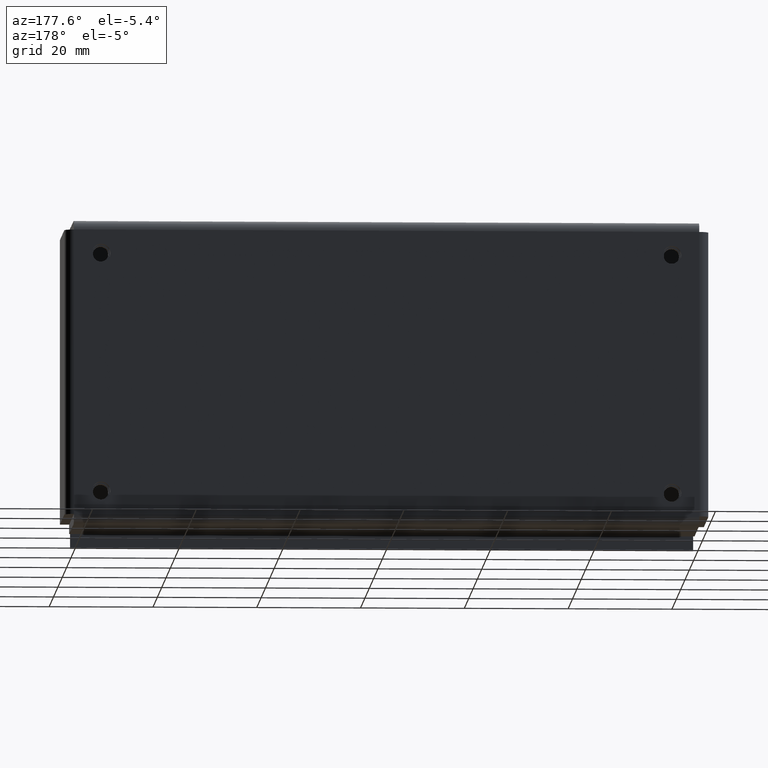
[diagram: clean part render]
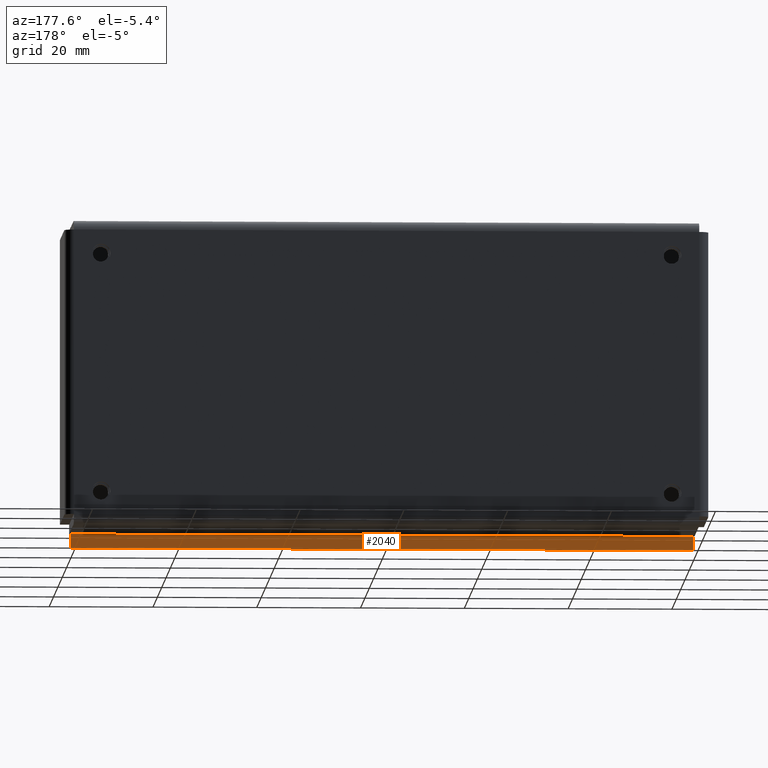
[diagram: same view with one face highlighted and labeled with its STEP entity id]
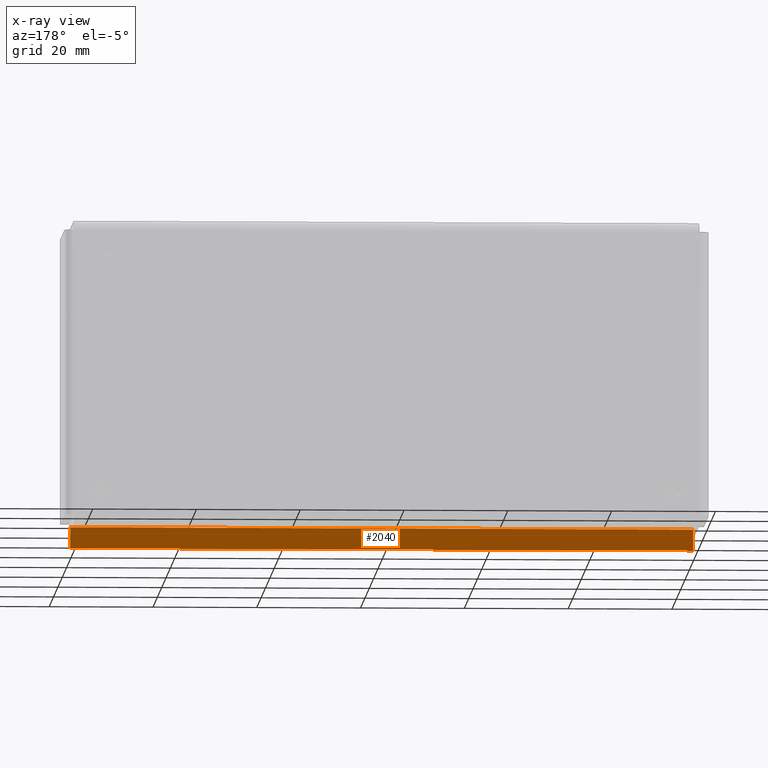
[diagram: x-ray of the same camera — body ghosted, the highlighted face saturated]
A machine part, auxiliary view. The second image highlights one B-rep face of the part: STEP entity #2040.
The next image is the same camera in x-ray: the body ghosted, the highlighted face saturated — about 0% of this face is hidden behind the body in this view.
In plain terms, the highlighted face is a freeform B-spline surface patch.
Its self-contained STEP definition (entity closure, byte-faithful):
#1276=CARTESIAN_POINT('',(60.0,0.0,0.0));
#1277=VERTEX_POINT('',#1276);
#1283=CARTESIAN_POINT('',(60.0,0.0,4.0));
#1284=VERTEX_POINT('',#1283);
#1285=CARTESIAN_POINT('',(60.0,0.0,0.0));
#1286=CARTESIAN_POINT('',(60.0,0.0,4.0));
#1287=QUASI_UNIFORM_CURVE('',1,(#1285,#1286),.UNSPECIFIED.,.F.,.U.);
#1288=EDGE_CURVE('',#1277,#1284,#1287,.T.);
#1395=CARTESIAN_POINT('',(-60.0,0.0,4.0));
#1396=VERTEX_POINT('',#1395);
#1410=CARTESIAN_POINT('',(-60.0,0.0,0.0));
#1411=VERTEX_POINT('',#1410);
#1412=CARTESIAN_POINT('',(-60.0,0.0,0.0));
#1413=CARTESIAN_POINT('',(-60.0,0.0,4.0));
#1414=QUASI_UNIFORM_CURVE('',1,(#1412,#1413),.UNSPECIFIED.,.F.,.U.);
#1415=EDGE_CURVE('',#1411,#1396,#1414,.T.);
#2015=CARTESIAN_POINT('',(-60.0,0.0,4.0));
#2016=CARTESIAN_POINT('',(60.0,0.0,4.0));
#2017=QUASI_UNIFORM_CURVE('',1,(#2015,#2016),.UNSPECIFIED.,.F.,.U.);
#2018=EDGE_CURVE('',#1396,#1284,#2017,.T.);
#2025=CARTESIAN_POINT('',(-65.993999767416710,0.0,-0.199799992247224));
#2026=CARTESIAN_POINT('',(-65.993999767416710,0.0,4.199800099535585));
#2027=CARTESIAN_POINT('',(65.994002986067542,0.0,-0.199799992247224));
#2028=CARTESIAN_POINT('',(65.994002986067542,0.0,4.199800099535585));
#2029=B_SPLINE_SURFACE_WITH_KNOTS('',1,1,((#2025,#2027),(#2026,#2028)),.UNSPECIFIED.,.F.,.F.,.U.,(2,2),(2,2),(0.0,4.399600091782808),(0.0,131.988002753484210),.UNSPECIFIED.);
#2030=ORIENTED_EDGE('',*,*,#1288,.F.);
#2031=CARTESIAN_POINT('',(-60.0,0.0,0.0));
#2032=CARTESIAN_POINT('',(60.0,0.0,0.0));
#2033=QUASI_UNIFORM_CURVE('',1,(#2031,#2032),.UNSPECIFIED.,.F.,.U.);
#2034=EDGE_CURVE('',#1411,#1277,#2033,.T.);
#2035=ORIENTED_EDGE('',*,*,#2034,.F.);
#2036=ORIENTED_EDGE('',*,*,#1415,.T.);
#2037=ORIENTED_EDGE('',*,*,#2018,.T.);
#2038=EDGE_LOOP('',(#2030,#2035,#2036,#2037));
#2039=FACE_OUTER_BOUND('',#2038,.T.);
#2040=ADVANCED_FACE('',(#2039),#2029,.T.);